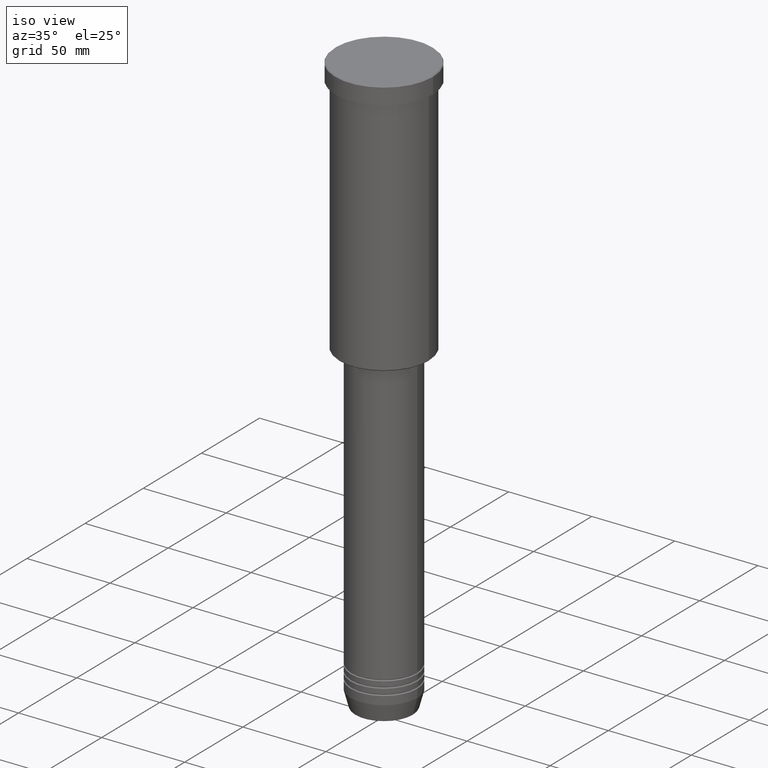
[diagram: clean part render]
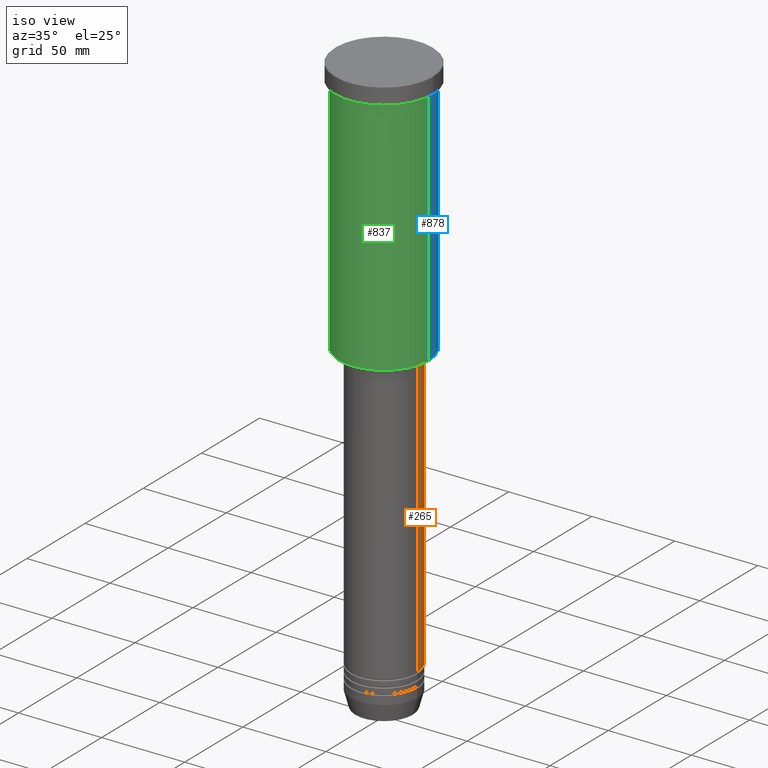
[diagram: same view with three faces highlighted in distinct colors, each labeled with its STEP entity id]
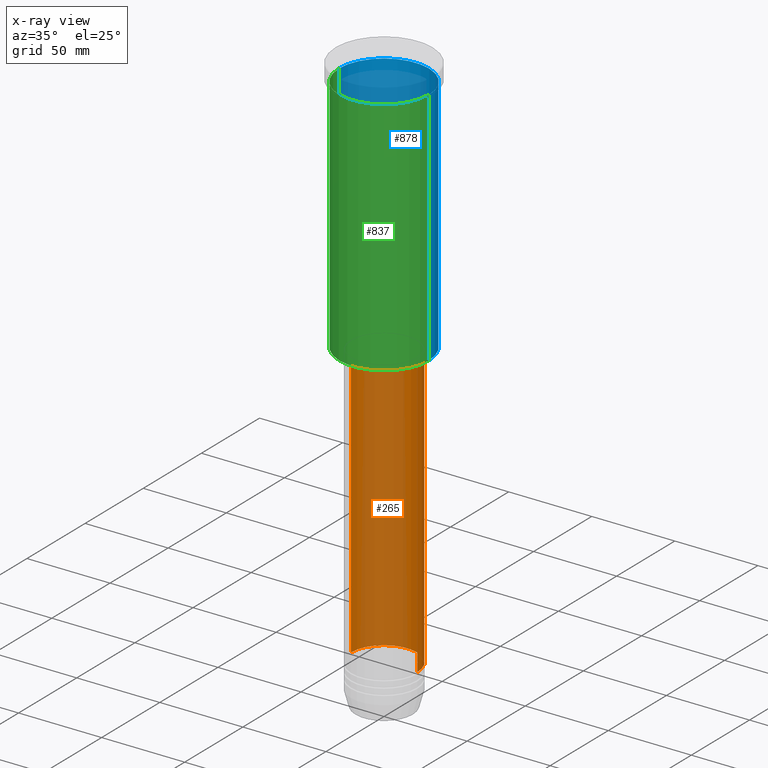
[diagram: x-ray of the same camera — body ghosted, the three highlighted faces saturated]
A machine part, iso view with three faces highlighted in distinct colors.
The next image is the same camera in x-ray (body ghosted, the three faces saturated) — at least one of them is partly hidden behind the body in this view.
Their STEP definitions:

[orange] entity #265 — the highlighted cylindrical surface (partial cylindrical patch) has radius 20 mm, axis along (-0, -0, 1).
#85 = EDGE_CURVE ( 'NONE', #1061, #586, #108, .T. ) ;
#108 = CIRCLE ( 'NONE', #801, 20.00000000000000000 ) ;
#134 = CIRCLE ( 'NONE', #436, 19.99999999999999645 ) ;
#241 = VECTOR ( 'NONE', #1062, 1000.000000000000000 ) ;
#246 = DIRECTION ( 'NONE',  ( 1.000000000000000000, 0.000000000000000000, 0.000000000000000000 ) ) ;
#265 = ADVANCED_FACE ( 'NONE', ( #772 ), #1063, .T. ) ;
#275 = VERTEX_POINT ( 'NONE', #777 ) ;
#308 = CARTESIAN_POINT ( 'NONE',  ( -19.99999999999999645, 2.449293598294706119E-15, 0.000000000000000000 ) ) ;
#338 = CARTESIAN_POINT ( 'NONE',  ( -19.99999999999999645, 2.449293598294706119E-15, -156.9999999999999432 ) ) ;
#348 = DIRECTION ( 'NONE',  ( -0.000000000000000000, -0.000000000000000000, 1.000000000000000000 ) ) ;
#352 = DIRECTION ( 'NONE',  ( -0.000000000000000000, -0.000000000000000000, 1.000000000000000000 ) ) ;
#408 = DIRECTION ( 'NONE',  ( 1.000000000000000000, 0.000000000000000000, 0.000000000000000000 ) ) ;
#436 = AXIS2_PLACEMENT_3D ( 'NONE', #884, #632, #518 ) ;
#466 = ORIENTED_EDGE ( 'NONE', *, *, #794, .F. ) ;
#472 = VERTEX_POINT ( 'NONE', #338 ) ;
#497 = ORIENTED_EDGE ( 'NONE', *, *, #643, .T. ) ;
#500 = AXIS2_PLACEMENT_3D ( 'NONE', #1057, #963, #408 ) ;
#518 = DIRECTION ( 'NONE',  ( 1.000000000000000000, 0.000000000000000000, 0.000000000000000000 ) ) ;
#538 = ORIENTED_EDGE ( 'NONE', *, *, #881, .F. ) ;
#586 = VERTEX_POINT ( 'NONE', #845 ) ;
#632 = DIRECTION ( 'NONE',  ( -0.000000000000000000, -0.000000000000000000, 1.000000000000000000 ) ) ;
#643 = EDGE_CURVE ( 'NONE', #586, #472, #961, .T. ) ;
#645 = EDGE_LOOP ( 'NONE', ( #1096, #497, #538, #466 ) ) ;
#710 = CARTESIAN_POINT ( 'NONE',  ( 0.000000000000000000, 0.000000000000000000, -326.9999999999999432 ) ) ;
#772 = FACE_OUTER_BOUND ( 'NONE', #645, .T. ) ;
#777 = CARTESIAN_POINT ( 'NONE',  ( 19.99999999999999645, 0.000000000000000000, -156.9999999999999432 ) ) ;
#794 = EDGE_CURVE ( 'NONE', #1061, #275, #1172, .T. ) ;
#801 = AXIS2_PLACEMENT_3D ( 'NONE', #710, #352, #246 ) ;
#813 = CARTESIAN_POINT ( 'NONE',  ( 19.99999999999999645, 0.000000000000000000, 0.000000000000000000 ) ) ;
#830 = CARTESIAN_POINT ( 'NONE',  ( 20.00000000000000000, 0.000000000000000000, -326.9999999999999432 ) ) ;
#845 = CARTESIAN_POINT ( 'NONE',  ( -20.00000000000000000, 2.449293598294706513E-15, -326.9999999999999432 ) ) ;
#861 = VECTOR ( 'NONE', #348, 1000.000000000000000 ) ;
#881 = EDGE_CURVE ( 'NONE', #275, #472, #134, .T. ) ;
#884 = CARTESIAN_POINT ( 'NONE',  ( 0.000000000000000000, 0.000000000000000000, -156.9999999999999432 ) ) ;
#961 = LINE ( 'NONE', #308, #241 ) ;
#963 = DIRECTION ( 'NONE',  ( -0.000000000000000000, -0.000000000000000000, 1.000000000000000000 ) ) ;
#1057 = CARTESIAN_POINT ( 'NONE',  ( 0.000000000000000000, 0.000000000000000000, 0.000000000000000000 ) ) ;
#1061 = VERTEX_POINT ( 'NONE', #830 ) ;
#1062 = DIRECTION ( 'NONE',  ( -0.000000000000000000, -0.000000000000000000, 1.000000000000000000 ) ) ;
#1063 = CYLINDRICAL_SURFACE ( 'NONE', #500, 19.99999999999999645 ) ;
#1096 = ORIENTED_EDGE ( 'NONE', *, *, #85, .T. ) ;
#1172 = LINE ( 'NONE', #813, #861 ) ;

[blue] entity #878 — the highlighted cylindrical surface (partial cylindrical patch) has radius 27 mm, axis along (-0, -0, 1).
#14 = DIRECTION ( 'NONE',  ( -0.000000000000000000, -0.000000000000000000, 1.000000000000000000 ) ) ;
#27 = LINE ( 'NONE', #393, #939 ) ;
#35 = AXIS2_PLACEMENT_3D ( 'NONE', #989, #249, #629 ) ;
#90 = DIRECTION ( 'NONE',  ( -0.000000000000000000, -0.000000000000000000, 1.000000000000000000 ) ) ;
#122 = EDGE_CURVE ( 'NONE', #649, #556, #27, .T. ) ;
#144 = DIRECTION ( 'NONE',  ( 1.000000000000000000, 0.000000000000000000, 0.000000000000000000 ) ) ;
#152 = FACE_OUTER_BOUND ( 'NONE', #1141, .T. ) ;
#154 = CARTESIAN_POINT ( 'NONE',  ( 0.000000000000000000, 0.000000000000000000, 0.000000000000000000 ) ) ;
#214 = VERTEX_POINT ( 'NONE', #968 ) ;
#218 = CARTESIAN_POINT ( 'NONE',  ( 27.00000000000000355, 0.000000000000000000, -155.5000000000000284 ) ) ;
#222 = DIRECTION ( 'NONE',  ( -0.000000000000000000, -0.000000000000000000, 1.000000000000000000 ) ) ;
#249 = DIRECTION ( 'NONE',  ( -0.000000000000000000, -0.000000000000000000, 1.000000000000000000 ) ) ;
#273 = CARTESIAN_POINT ( 'NONE',  ( 27.00000000000000355, 0.000000000000000000, -10.99999999999999289 ) ) ;
#303 = CIRCLE ( 'NONE', #1148, 27.00000000000000355 ) ;
#362 = AXIS2_PLACEMENT_3D ( 'NONE', #154, #527, #144 ) ;
#393 = CARTESIAN_POINT ( 'NONE',  ( 27.00000000000000355, 0.000000000000000000, 0.000000000000000000 ) ) ;
#435 = EDGE_CURVE ( 'NONE', #649, #997, #787, .T. ) ;
#477 = VECTOR ( 'NONE', #222, 1000.000000000000000 ) ;
#527 = DIRECTION ( 'NONE',  ( -0.000000000000000000, -0.000000000000000000, 1.000000000000000000 ) ) ;
#556 = VERTEX_POINT ( 'NONE', #273 ) ;
#571 = ORIENTED_EDGE ( 'NONE', *, *, #727, .T. ) ;
#597 = EDGE_CURVE ( 'NONE', #556, #214, #303, .T. ) ;
#613 = LINE ( 'NONE', #675, #477 ) ;
#629 = DIRECTION ( 'NONE',  ( -1.000000000000000000, 0.000000000000000000, 0.000000000000000000 ) ) ;
#647 = DIRECTION ( 'NONE',  ( 1.000000000000000000, 0.000000000000000000, 0.000000000000000000 ) ) ;
#649 = VERTEX_POINT ( 'NONE', #218 ) ;
#657 = CARTESIAN_POINT ( 'NONE',  ( 0.000000000000000000, 0.000000000000000000, -10.99999999999999289 ) ) ;
#675 = CARTESIAN_POINT ( 'NONE',  ( -27.00000000000000355, 3.306546357697854128E-15, 0.000000000000000000 ) ) ;
#727 = EDGE_CURVE ( 'NONE', #997, #214, #613, .T. ) ;
#742 = ORIENTED_EDGE ( 'NONE', *, *, #122, .F. ) ;
#756 = CARTESIAN_POINT ( 'NONE',  ( -27.00000000000000355, 3.306546357697854128E-15, -155.5000000000000284 ) ) ;
#774 = ORIENTED_EDGE ( 'NONE', *, *, #597, .F. ) ;
#787 = CIRCLE ( 'NONE', #35, 27.00000000000000355 ) ;
#878 = ADVANCED_FACE ( 'NONE', ( #152 ), #980, .T. ) ;
#939 = VECTOR ( 'NONE', #90, 1000.000000000000000 ) ;
#968 = CARTESIAN_POINT ( 'NONE',  ( -27.00000000000000355, 3.306546357697854128E-15, -10.99999999999999289 ) ) ;
#980 = CYLINDRICAL_SURFACE ( 'NONE', #362, 27.00000000000000355 ) ;
#989 = CARTESIAN_POINT ( 'NONE',  ( 0.000000000000000000, 0.000000000000000000, -155.5000000000000284 ) ) ;
#997 = VERTEX_POINT ( 'NONE', #756 ) ;
#1135 = ORIENTED_EDGE ( 'NONE', *, *, #435, .T. ) ;
#1141 = EDGE_LOOP ( 'NONE', ( #1135, #571, #774, #742 ) ) ;
#1148 = AXIS2_PLACEMENT_3D ( 'NONE', #657, #14, #647 ) ;

[green] entity #837 — the highlighted cylindrical surface (partial cylindrical patch) has radius 27 mm, axis along (-0, -0, 1).
#27 = LINE ( 'NONE', #393, #939 ) ;
#57 = CYLINDRICAL_SURFACE ( 'NONE', #422, 27.00000000000000355 ) ;
#90 = DIRECTION ( 'NONE',  ( -0.000000000000000000, -0.000000000000000000, 1.000000000000000000 ) ) ;
#101 = DIRECTION ( 'NONE',  ( -1.000000000000000000, 0.000000000000000000, 0.000000000000000000 ) ) ;
#107 = EDGE_CURVE ( 'NONE', #997, #649, #256, .T. ) ;
#111 = ORIENTED_EDGE ( 'NONE', *, *, #727, .F. ) ;
#122 = EDGE_CURVE ( 'NONE', #649, #556, #27, .T. ) ;
#198 = DIRECTION ( 'NONE',  ( -0.000000000000000000, -0.000000000000000000, 1.000000000000000000 ) ) ;
#214 = VERTEX_POINT ( 'NONE', #968 ) ;
#218 = CARTESIAN_POINT ( 'NONE',  ( 27.00000000000000355, 0.000000000000000000, -155.5000000000000284 ) ) ;
#222 = DIRECTION ( 'NONE',  ( -0.000000000000000000, -0.000000000000000000, 1.000000000000000000 ) ) ;
#256 = CIRCLE ( 'NONE', #299, 27.00000000000000355 ) ;
#272 = ORIENTED_EDGE ( 'NONE', *, *, #444, .F. ) ;
#273 = CARTESIAN_POINT ( 'NONE',  ( 27.00000000000000355, 0.000000000000000000, -10.99999999999999289 ) ) ;
#299 = AXIS2_PLACEMENT_3D ( 'NONE', #734, #198, #101 ) ;
#345 = DIRECTION ( 'NONE',  ( 1.000000000000000000, 0.000000000000000000, 0.000000000000000000 ) ) ;
#393 = CARTESIAN_POINT ( 'NONE',  ( 27.00000000000000355, 0.000000000000000000, 0.000000000000000000 ) ) ;
#422 = AXIS2_PLACEMENT_3D ( 'NONE', #1065, #1068, #345 ) ;
#444 = EDGE_CURVE ( 'NONE', #214, #556, #709, .T. ) ;
#477 = VECTOR ( 'NONE', #222, 1000.000000000000000 ) ;
#556 = VERTEX_POINT ( 'NONE', #273 ) ;
#561 = ORIENTED_EDGE ( 'NONE', *, *, #122, .T. ) ;
#613 = LINE ( 'NONE', #675, #477 ) ;
#649 = VERTEX_POINT ( 'NONE', #218 ) ;
#675 = CARTESIAN_POINT ( 'NONE',  ( -27.00000000000000355, 3.306546357697854128E-15, 0.000000000000000000 ) ) ;
#705 = FACE_OUTER_BOUND ( 'NONE', #1098, .T. ) ;
#709 = CIRCLE ( 'NONE', #1178, 27.00000000000000355 ) ;
#717 = CARTESIAN_POINT ( 'NONE',  ( 0.000000000000000000, 0.000000000000000000, -10.99999999999999289 ) ) ;
#727 = EDGE_CURVE ( 'NONE', #997, #214, #613, .T. ) ;
#734 = CARTESIAN_POINT ( 'NONE',  ( 0.000000000000000000, 0.000000000000000000, -155.5000000000000284 ) ) ;
#756 = CARTESIAN_POINT ( 'NONE',  ( -27.00000000000000355, 3.306546357697854128E-15, -155.5000000000000284 ) ) ;
#792 = DIRECTION ( 'NONE',  ( 1.000000000000000000, 0.000000000000000000, 0.000000000000000000 ) ) ;
#837 = ADVANCED_FACE ( 'NONE', ( #705 ), #57, .T. ) ;
#907 = DIRECTION ( 'NONE',  ( -0.000000000000000000, -0.000000000000000000, 1.000000000000000000 ) ) ;
#939 = VECTOR ( 'NONE', #90, 1000.000000000000000 ) ;
#964 = ORIENTED_EDGE ( 'NONE', *, *, #107, .T. ) ;
#968 = CARTESIAN_POINT ( 'NONE',  ( -27.00000000000000355, 3.306546357697854128E-15, -10.99999999999999289 ) ) ;
#997 = VERTEX_POINT ( 'NONE', #756 ) ;
#1065 = CARTESIAN_POINT ( 'NONE',  ( 0.000000000000000000, 0.000000000000000000, 0.000000000000000000 ) ) ;
#1068 = DIRECTION ( 'NONE',  ( -0.000000000000000000, -0.000000000000000000, 1.000000000000000000 ) ) ;
#1098 = EDGE_LOOP ( 'NONE', ( #111, #964, #561, #272 ) ) ;
#1178 = AXIS2_PLACEMENT_3D ( 'NONE', #717, #907, #792 ) ;